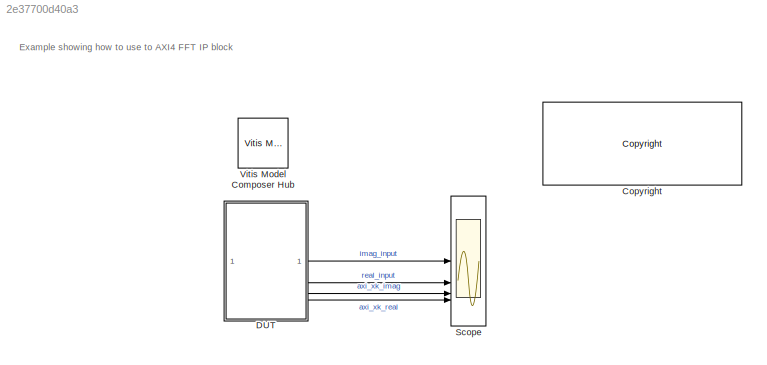
MODEL slx_2e37700d40a3
KIND model
CONFIG AbsTol = auto
CONFIG EnableMultiTasking = on
CONFIG FixedStep = auto
CONFIG MaxStep = auto
CONFIG MinStep = auto
CONFIG RelTol = 1e-3
CONFIG SampleTimeConstraint = Unconstrained
CONFIG SolverName = VariableStepDiscrete
CONFIG StartTime = 0.0
CONFIG StopTime = 3000
BLOCK [Reference] <copyright redacted>
  SourceBlock = hdlUtilities/<copyright redacted>
  SourceType = Xilinx <copyright redacted>
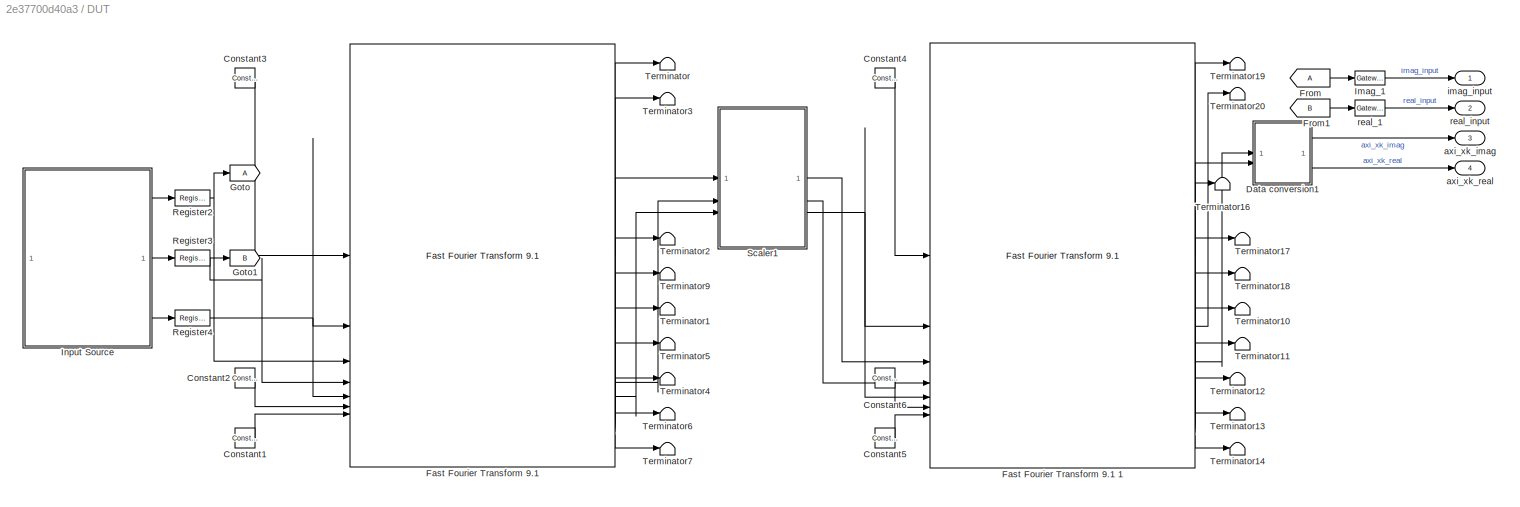
BLOCK [SubSystem] DUT
BLOCK [Reference] DUT/Constant1  REF=hdlBasic/Constant
  SourceBlock = hdlBasic/Constant
  SourceType = Constant Block Block
BLOCK [Reference] DUT/Constant2  REF=hdlBasic/Constant
  SourceBlock = hdlBasic/Constant
  SourceType = Constant Block Block
BLOCK [Reference] DUT/Constant3  REF=hdlBasic/Constant
  SourceBlock = hdlBasic/Constant
  SourceType = Constant Block Block
BLOCK [Reference] DUT/Constant4  REF=hdlBasic/Constant
  SourceBlock = hdlBasic/Constant
  SourceType = Constant Block Block
BLOCK [Reference] DUT/Constant5  REF=hdlBasic/Constant
  SourceBlock = hdlBasic/Constant
  SourceType = Constant Block Block
BLOCK [Reference] DUT/Constant6  REF=hdlBasic/Constant
  SourceBlock = hdlBasic/Constant
  SourceType = Constant Block Block
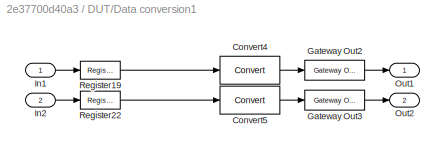
BLOCK [SubSystem] DUT/Data conversion1
BLOCK [Reference] DUT/Data conversion1/Convert4  REF=hdlBasic/Convert
  SourceBlock = hdlBasic/Convert
  SourceType = Type Converter Block
BLOCK [Reference] DUT/Data conversion1/Convert5  REF=hdlBasic/Convert
  SourceBlock = hdlBasic/Convert
  SourceType = Type Converter Block
BLOCK [Reference] DUT/Data conversion1/Gateway Out2  REF=hdlBasic/Gateway Out
  SourceBlock = hdlBasic/Gateway Out
  SourceType = Gateway Out Block
BLOCK [Reference] DUT/Data conversion1/Gateway Out3  REF=hdlBasic/Gateway Out
  SourceBlock = hdlBasic/Gateway Out
  SourceType = Gateway Out Block
BLOCK [Inport] DUT/Data conversion1/In1
BLOCK [Inport] DUT/Data conversion1/In2
  Port = 2
BLOCK [Outport] DUT/Data conversion1/Out1
  VectorParamsAs1DForOutWhenUnconnected = off
BLOCK [Outport] DUT/Data conversion1/Out2
  Port = 2
  VectorParamsAs1DForOutWhenUnconnected = off
BLOCK [Reference] DUT/Data conversion1/Register19  REF=hdlBasic/Register
  SourceBlock = hdlBasic/Register
  SourceType = Register Block
BLOCK [Reference] DUT/Data conversion1/Register22  REF=hdlBasic/Register
  SourceBlock = hdlBasic/Register
  SourceType = Register Block
BLOCK [Reference] DUT/Fast Fourier Transform 9.1   REF=hdlDSPIP/Fast Fourier Transform 9.1 
  SourceBlock = hdlDSPIP/Fast Fourier Transform 9.1
  SourceType = Fast Fourier Transform 9.1  Block
BLOCK [Reference] DUT/Fast Fourier Transform 9.1 1  REF=hdlDSPIP/Fast Fourier Transform 9.1 
  SourceBlock = hdlDSPIP/Fast Fourier Transform 9.1
  SourceType = Fast Fourier Transform 9.1  Block
BLOCK [From] DUT/From
BLOCK [From] DUT/From1
  GotoTag = B
BLOCK [Goto] DUT/Goto
  NameLocation = top
BLOCK [Goto] DUT/Goto1
  GotoTag = B
  NameLocation = top
BLOCK [Reference] DUT/Imag_1  REF=hdlBasic/Gateway Out
  SourceBlock = hdlBasic/Gateway Out
  SourceType = Gateway Out Block
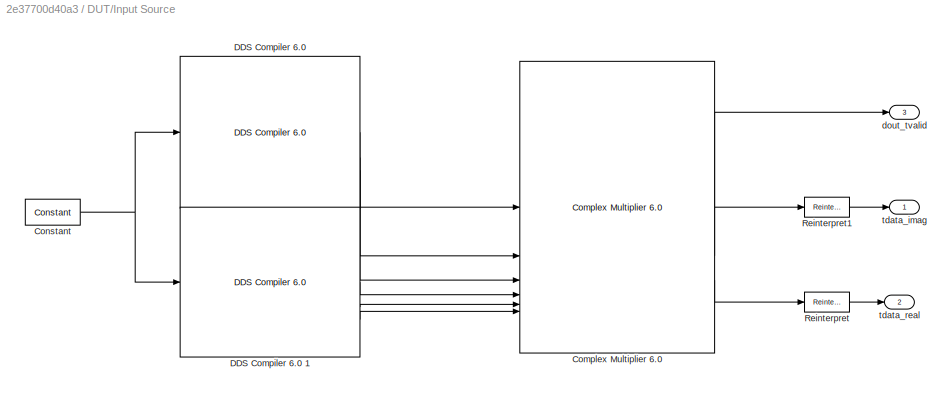
BLOCK [SubSystem] DUT/Input Source
BLOCK [Reference] DUT/Input Source/Complex Multiplier 6.0   REF=hdlDSPIP/Complex Multiplier 6.0 
  SourceBlock = hdlDSPIP/Complex Multiplier 6.0
  SourceType = Complex Multiplier 6.0  Block
BLOCK [Reference] DUT/Input Source/Constant  REF=hdlBasic/Constant
  SourceBlock = hdlBasic/Constant
  SourceType = Constant Block Block
BLOCK [Reference] DUT/Input Source/DDS Compiler 6.0   REF=hdlDSPIP/DDS Compiler 6.0 
  SourceBlock = hdlDSPIP/DDS Compiler 6.0
  SourceType = DDS Compiler 6.0 Block
BLOCK [Reference] DUT/Input Source/DDS Compiler 6.0 1  REF=hdlDSPIP/DDS Compiler 6.0 
  SourceBlock = hdlDSPIP/DDS Compiler 6.0
  SourceType = DDS Compiler 6.0 Block
BLOCK [Reference] DUT/Input Source/Reinterpret  REF=hdlBasic/Reinterpret
  SourceBlock = hdlBasic/Reinterpret
  SourceType = Type Reinterpreter Block
BLOCK [Reference] DUT/Input Source/Reinterpret1  REF=hdlBasic/Reinterpret
  SourceBlock = hdlBasic/Reinterpret
  SourceType = Type Reinterpreter Block
BLOCK [Outport] DUT/Input Source/dout_tvalid
  Port = 3
  VectorParamsAs1DForOutWhenUnconnected = off
BLOCK [Outport] DUT/Input Source/tdata_imag
  VectorParamsAs1DForOutWhenUnconnected = off
BLOCK [Outport] DUT/Input Source/tdata_real
  Port = 2
  VectorParamsAs1DForOutWhenUnconnected = off
BLOCK [Reference] DUT/Register2  REF=hdlBasic/Register
  SourceBlock = hdlBasic/Register
  SourceType = Register Block
BLOCK [Reference] DUT/Register3  REF=hdlBasic/Register
  SourceBlock = hdlBasic/Register
  SourceType = Register Block
BLOCK [Reference] DUT/Register4  REF=hdlBasic/Register
  SourceBlock = hdlBasic/Register
  SourceType = Register Block
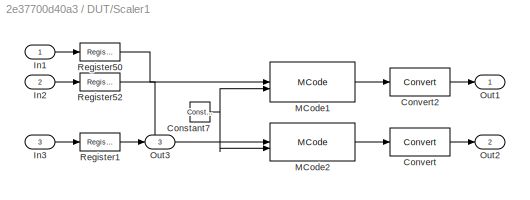
BLOCK [SubSystem] DUT/Scaler1
BLOCK [Reference] DUT/Scaler1/Constant7  REF=hdlBasic/Constant
  SourceBlock = hdlBasic/Constant
  SourceType = Constant Block Block
BLOCK [Reference] DUT/Scaler1/Convert  REF=hdlBasic/Convert
  SourceBlock = hdlBasic/Convert
  SourceType = Type Converter Block
BLOCK [Reference] DUT/Scaler1/Convert2  REF=hdlBasic/Convert
  SourceBlock = hdlBasic/Convert
  SourceType = Type Converter Block
BLOCK [Inport] DUT/Scaler1/In1
BLOCK [Inport] DUT/Scaler1/In2
  Port = 2
BLOCK [Inport] DUT/Scaler1/In3
  Port = 3
BLOCK [Reference] DUT/Scaler1/MCode1  REF=hdlBasic/MCode
  SourceBlock = hdlBasic/MCode
  SourceType = MCode
BLOCK [Reference] DUT/Scaler1/MCode2  REF=hdlBasic/MCode
  SourceBlock = hdlBasic/MCode
  SourceType = MCode
BLOCK [Outport] DUT/Scaler1/Out1
  VectorParamsAs1DForOutWhenUnconnected = off
BLOCK [Outport] DUT/Scaler1/Out2
  Port = 2
  VectorParamsAs1DForOutWhenUnconnected = off
BLOCK [Outport] DUT/Scaler1/Out3
  Port = 3
  VectorParamsAs1DForOutWhenUnconnected = off
BLOCK [Reference] DUT/Scaler1/Register1  REF=hdlBasic/Register
  SourceBlock = hdlBasic/Register
  SourceType = Register Block
BLOCK [Reference] DUT/Scaler1/Register50  REF=hdlBasic/Register
  SourceBlock = hdlBasic/Register
  SourceType = Register Block
BLOCK [Reference] DUT/Scaler1/Register52  REF=hdlBasic/Register
  SourceBlock = hdlBasic/Register
  SourceType = Register Block
BLOCK [Terminator] DUT/Terminator
BLOCK [Terminator] DUT/Terminator1
BLOCK [Terminator] DUT/Terminator10
BLOCK [Terminator] DUT/Terminator11
BLOCK [Terminator] DUT/Terminator12
BLOCK [Terminator] DUT/Terminator13
BLOCK [Terminator] DUT/Terminator14
BLOCK [Terminator] DUT/Terminator16
BLOCK [Terminator] DUT/Terminator17
BLOCK [Terminator] DUT/Terminator18
BLOCK [Terminator] DUT/Terminator19
BLOCK [Terminator] DUT/Terminator2
BLOCK [Terminator] DUT/Terminator20
BLOCK [Terminator] DUT/Terminator3
BLOCK [Terminator] DUT/Terminator4
BLOCK [Terminator] DUT/Terminator5
BLOCK [Terminator] DUT/Terminator6
BLOCK [Terminator] DUT/Terminator7
BLOCK [Terminator] DUT/Terminator9
BLOCK [Outport] DUT/axi_xk_imag
  Port = 3
BLOCK [Outport] DUT/axi_xk_real
  Port = 4
BLOCK [Outport] DUT/imag_input
BLOCK [Reference] DUT/real_1  REF=hdlBasic/Gateway Out
  SourceBlock = hdlBasic/Gateway Out
  SourceType = Gateway Out Block
BLOCK [Outport] DUT/real_input
  Port = 2
BLOCK [Scope] Scope
  Floating = off
  NumInputPorts = 4
  ScopeSpecificationString = Simulink.scopes.TimeScopeBlockCfg('CurrentConfiguration', extmgr.ConfigurationSet(extmgr.Configuration('Core','General UI',true),extmgr.Configuration('Core','Source UI',true),extmgr.Configuration('Sources','WiredSimulink',true,'DataLoggingLimitDataPoints',true,'DataLoggingDecimateData',true,'DataLoggingDecimation','1','DataLoggingSaveFormat','Structure With Time'),extmgr.Configuration('Visuals','T...<+4072ch>
BLOCK [Reference] Vitis Model Composer Hub  REF=vmcUtilities/Vitis Model Composer Hub
  SourceBlock = vmcUtilities/Vitis Model Composer Hub
  SourceType = VMC Hub
  Tag = genX
  UserDataPersistent = on
ANNOTATION (root): Example showing how to use to AXI4 FFT IP block
LINE DUT/Constant1:1 -> DUT/Fast Fourier Transform 9.1 :7
LINE DUT/Constant2:1 -> DUT/Fast Fourier Transform 9.1 :6
LINE DUT/Constant3:1 -> DUT/Fast Fourier Transform 9.1 :1
LINE DUT/Constant4:1 -> DUT/Fast Fourier Transform 9.1 1:1
LINE DUT/Constant5:1 -> DUT/Fast Fourier Transform 9.1 1:7
LINE DUT/Constant6:1 -> DUT/Fast Fourier Transform 9.1 1:6
LINE DUT/Data conversion1/Convert4:1 -> DUT/Data conversion1/Gateway Out2:1
LINE DUT/Data conversion1/Convert5:1 -> DUT/Data conversion1/Gateway Out3:1
LINE DUT/Data conversion1/Gateway Out2:1 -> DUT/Data conversion1/Out1:1
LINE DUT/Data conversion1/Gateway Out3:1 -> DUT/Data conversion1/Out2:1
LINE DUT/Data conversion1/In1:1 -> DUT/Data conversion1/Register19:1
LINE DUT/Data conversion1/In2:1 -> DUT/Data conversion1/Register22:1
LINE DUT/Data conversion1/Register19:1 -> DUT/Data conversion1/Convert4:1
LINE DUT/Data conversion1/Register22:1 -> DUT/Data conversion1/Convert5:1
LINE DUT/Data conversion1:1 -> DUT/axi_xk_imag:1
LINE DUT/Data conversion1:2 -> DUT/axi_xk_real:1
LINE DUT/Fast Fourier Transform 9.1 1:1 -> DUT/Terminator19:1
LINE DUT/Fast Fourier Transform 9.1 1:10 -> DUT/Terminator12:1
LINE DUT/Fast Fourier Transform 9.1 1:11 -> DUT/Terminator13:1
LINE DUT/Fast Fourier Transform 9.1 1:12 -> DUT/Terminator14:1
LINE DUT/Fast Fourier Transform 9.1 1:2 -> DUT/Terminator20:1
LINE DUT/Fast Fourier Transform 9.1 1:3 -> DUT/Data conversion1:1
LINE DUT/Fast Fourier Transform 9.1 1:4 -> DUT/Data conversion1:2
LINE DUT/Fast Fourier Transform 9.1 1:5 -> DUT/Terminator16:1
LINE DUT/Fast Fourier Transform 9.1 1:6 -> DUT/Terminator17:1
LINE DUT/Fast Fourier Transform 9.1 1:7 -> DUT/Terminator18:1
LINE DUT/Fast Fourier Transform 9.1 1:8 -> DUT/Terminator10:1
LINE DUT/Fast Fourier Transform 9.1 1:9 -> DUT/Terminator11:1
LINE DUT/Fast Fourier Transform 9.1 :1 -> DUT/Terminator:1
LINE DUT/Fast Fourier Transform 9.1 :10 -> DUT/Terminator4:1
LINE DUT/Fast Fourier Transform 9.1 :11 -> DUT/Terminator6:1
LINE DUT/Fast Fourier Transform 9.1 :12 -> DUT/Terminator7:1
LINE DUT/Fast Fourier Transform 9.1 :2 -> DUT/Terminator3:1
LINE DUT/Fast Fourier Transform 9.1 :3 -> DUT/Scaler1:1
LINE DUT/Fast Fourier Transform 9.1 :4 -> DUT/Scaler1:2
LINE DUT/Fast Fourier Transform 9.1 :5 -> DUT/Scaler1:3
LINE DUT/Fast Fourier Transform 9.1 :6 -> DUT/Terminator2:1
LINE DUT/Fast Fourier Transform 9.1 :7 -> DUT/Terminator9:1
LINE DUT/Fast Fourier Transform 9.1 :8 -> DUT/Terminator1:1
LINE DUT/Fast Fourier Transform 9.1 :9 -> DUT/Terminator5:1
LINE DUT/From1:1 -> DUT/real_1:1
LINE DUT/From:1 -> DUT/Imag_1:1
LINE DUT/Imag_1:1 -> DUT/imag_input:1
LINE DUT/Input Source/Complex Multiplier 6.0 :1 -> DUT/Input Source/dout_tvalid:1
LINE DUT/Input Source/Complex Multiplier 6.0 :2 -> DUT/Input Source/Reinterpret1:1
LINE DUT/Input Source/Complex Multiplier 6.0 :3 -> DUT/Input Source/Reinterpret:1
NET DUT/Input Source/Constant:1 -> DUT/Input Source/DDS Compiler 6.0 1:1, DUT/Input Source/DDS Compiler 6.0 :1
LINE DUT/Input Source/DDS Compiler 6.0 1:1 -> DUT/Input Source/Complex Multiplier 6.0 :4
LINE DUT/Input Source/DDS Compiler 6.0 1:2 -> DUT/Input Source/Complex Multiplier 6.0 :5
LINE DUT/Input Source/DDS Compiler 6.0 1:3 -> DUT/Input Source/Complex Multiplier 6.0 :6
LINE DUT/Input Source/DDS Compiler 6.0 :1 -> DUT/Input Source/Complex Multiplier 6.0 :1
LINE DUT/Input Source/DDS Compiler 6.0 :2 -> DUT/Input Source/Complex Multiplier 6.0 :2
LINE DUT/Input Source/DDS Compiler 6.0 :3 -> DUT/Input Source/Complex Multiplier 6.0 :3
LINE DUT/Input Source/Reinterpret1:1 -> DUT/Input Source/tdata_imag:1
LINE DUT/Input Source/Reinterpret:1 -> DUT/Input Source/tdata_real:1
LINE DUT/Input Source:1 -> DUT/Register2:1
LINE DUT/Input Source:2 -> DUT/Register3:1
LINE DUT/Input Source:3 -> DUT/Register4:1
NET DUT/Register2:1 -> DUT/Fast Fourier Transform 9.1 :3, DUT/Goto:1
NET DUT/Register3:1 -> DUT/Fast Fourier Transform 9.1 :4, DUT/Goto1:1
NET DUT/Register4:1 -> DUT/Fast Fourier Transform 9.1 :2, DUT/Fast Fourier Transform 9.1 :5
NET DUT/Scaler1/Constant7:1 -> DUT/Scaler1/MCode1:2, DUT/Scaler1/MCode2:2
LINE DUT/Scaler1/Convert2:1 -> DUT/Scaler1/Out1:1
LINE DUT/Scaler1/Convert:1 -> DUT/Scaler1/Out2:1
LINE DUT/Scaler1/In1:1 -> DUT/Scaler1/Register50:1
LINE DUT/Scaler1/In2:1 -> DUT/Scaler1/Register52:1
LINE DUT/Scaler1/In3:1 -> DUT/Scaler1/Register1:1
LINE DUT/Scaler1/MCode1:1 -> DUT/Scaler1/Convert2:1
LINE DUT/Scaler1/MCode2:1 -> DUT/Scaler1/Convert:1
LINE DUT/Scaler1/Register1:1 -> DUT/Scaler1/Out3:1
LINE DUT/Scaler1/Register50:1 -> DUT/Scaler1/MCode1:1
LINE DUT/Scaler1/Register52:1 -> DUT/Scaler1/MCode2:1
LINE DUT/Scaler1:1 -> DUT/Fast Fourier Transform 9.1 1:3
LINE DUT/Scaler1:2 -> DUT/Fast Fourier Transform 9.1 1:4
NET DUT/Scaler1:3 -> DUT/Fast Fourier Transform 9.1 1:2, DUT/Fast Fourier Transform 9.1 1:5
LINE DUT/real_1:1 -> DUT/real_input:1
LINE DUT:1 -> Scope:1
LINE DUT:2 -> Scope:2
LINE DUT:3 -> Scope:3
LINE DUT:4 -> Scope:4
note: NET lines group one-source signal fan-out (src -> all destinations, sorted); 1:1 wires keep LINE
